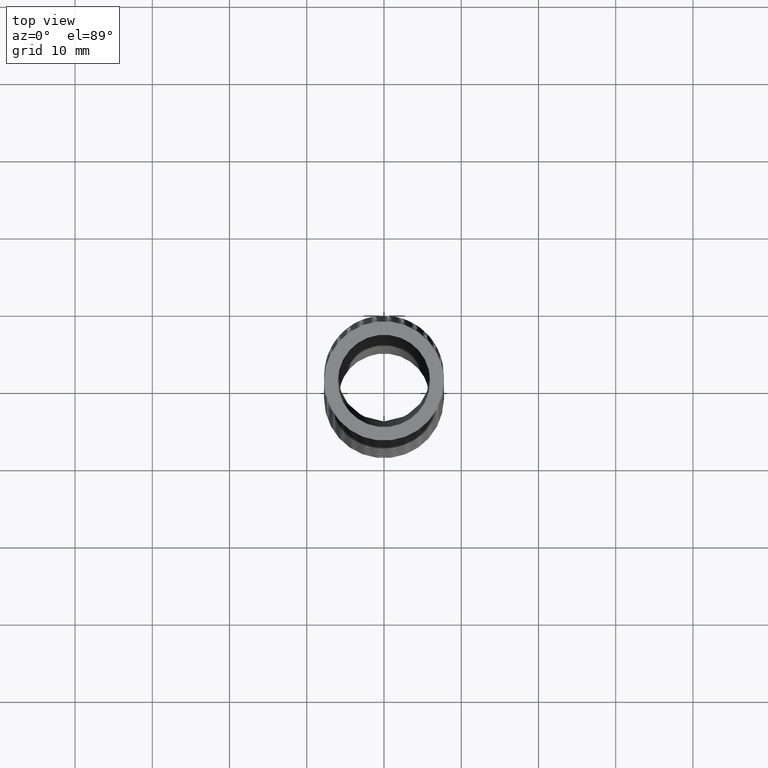
[diagram: clean part render]
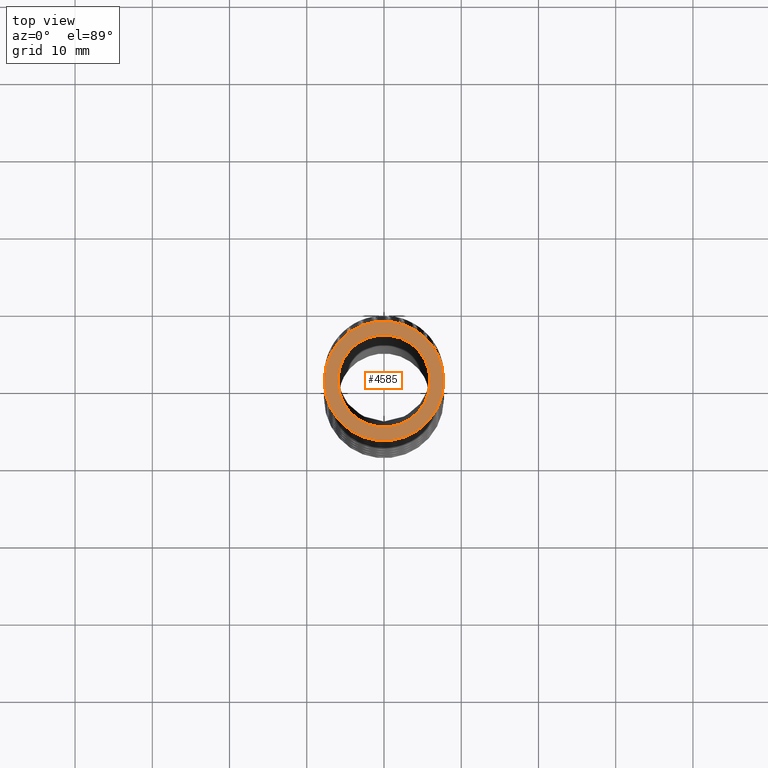
[diagram: same view with one face highlighted and labeled with its STEP entity id]
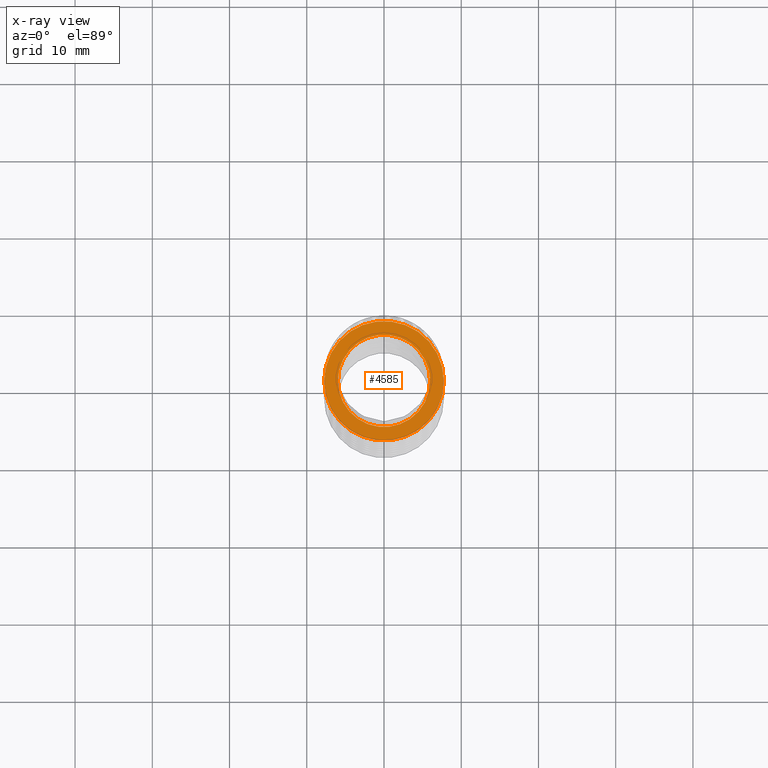
[diagram: x-ray of the same camera — body ghosted, the highlighted face saturated]
A machine part, top view. The second image highlights one B-rep face of the part: STEP entity #4585.
The next image is the same camera in x-ray: the body ghosted, the highlighted face saturated — about 0% of this face is hidden behind the body in this view.
In plain terms, the highlighted planar face has unit normal (0, 0, 1).
Its self-contained STEP definition (entity closure, byte-faithful):
#236 = CIRCLE ( 'NONE', #257, 0.2349999999999999900 ) ;
#254 = DIRECTION ( 'NONE',  ( 1.000000000000000000, 0.0000000000000000000, 0.0000000000000000000 ) ) ;
#255 = DIRECTION ( 'NONE',  ( 0.0000000000000000000, 0.0000000000000000000, 1.000000000000000000 ) ) ;
#256 = CARTESIAN_POINT ( 'NONE',  ( 0.0000000000000000000, 0.0000000000000000000, 0.0000000000000000000 ) ) ;
#257 = AXIS2_PLACEMENT_3D ( 'NONE', #256, #255, #254 ) ;
#537 = DIRECTION ( 'NONE',  ( 1.000000000000000000, 0.0000000000000000000, 0.0000000000000000000 ) ) ;
#538 = DIRECTION ( 'NONE',  ( 0.0000000000000000000, 0.0000000000000000000, 1.000000000000000000 ) ) ;
#539 = AXIS2_PLACEMENT_3D ( 'NONE', #543, #538, #537 ) ;
#540 = CIRCLE ( 'NONE', #539, 0.3050000000000000500 ) ;
#543 = CARTESIAN_POINT ( 'NONE',  ( 0.0000000000000000000, 0.0000000000000000000, 0.0000000000000000000 ) ) ;
#3442 = EDGE_CURVE ( 'NONE', #3444, #3446, #11573, .T. ) ;
#3444 = VERTEX_POINT ( 'NONE', #11568 ) ;
#3446 = VERTEX_POINT ( 'NONE', #11525 ) ;
#3564 = EDGE_CURVE ( 'NONE', #3565, #3566, #12791, .T. ) ;
#3565 = VERTEX_POINT ( 'NONE', #12826 ) ;
#3566 = VERTEX_POINT ( 'NONE', #12823 ) ;
#4457 = EDGE_CURVE ( 'NONE', #3446, #3444, #236, .T. ) ;
#4458 = ORIENTED_EDGE ( 'NONE', *, *, #4493, .T. ) ;
#4459 = ORIENTED_EDGE ( 'NONE', *, *, #3564, .T. ) ;
#4493 = EDGE_CURVE ( 'NONE', #3566, #3565, #540, .T. ) ;
#4585 = ADVANCED_FACE ( 'NONE', ( #6984, #6983 ), #7016, .T. ) ;
#4586 = EDGE_LOOP ( 'NONE', ( #4587, #4588 ) ) ;
#4587 = ORIENTED_EDGE ( 'NONE', *, *, #3442, .F. ) ;
#4588 = ORIENTED_EDGE ( 'NONE', *, *, #4457, .F. ) ;
#4589 = EDGE_LOOP ( 'NONE', ( #4458, #4459 ) ) ;
#6983 = FACE_OUTER_BOUND ( 'NONE', #4589, .T. ) ;
#6984 = FACE_BOUND ( 'NONE', #4586, .T. ) ;
#7012 = DIRECTION ( 'NONE',  ( 1.000000000000000000, 0.0000000000000000000, 0.0000000000000000000 ) ) ;
#7013 = DIRECTION ( 'NONE',  ( 0.0000000000000000000, 0.0000000000000000000, 1.000000000000000000 ) ) ;
#7014 = CARTESIAN_POINT ( 'NONE',  ( 0.0000000000000000000, 0.0000000000000000000, 0.0000000000000000000 ) ) ;
#7015 = AXIS2_PLACEMENT_3D ( 'NONE', #7014, #7013, #7012 ) ;
#7016 = PLANE ( 'NONE',  #7015 ) ;
#11525 = CARTESIAN_POINT ( 'NONE',  ( -0.2349999999999999900, 2.877919977996279800E-017, 0.0000000000000000000 ) ) ;
#11568 = CARTESIAN_POINT ( 'NONE',  ( 0.2349999999999999900, 0.0000000000000000000, 0.0000000000000000000 ) ) ;
#11569 = DIRECTION ( 'NONE',  ( 1.000000000000000000, 0.0000000000000000000, 0.0000000000000000000 ) ) ;
#11570 = DIRECTION ( 'NONE',  ( 0.0000000000000000000, 0.0000000000000000000, 1.000000000000000000 ) ) ;
#11571 = CARTESIAN_POINT ( 'NONE',  ( 0.0000000000000000000, 0.0000000000000000000, 0.0000000000000000000 ) ) ;
#11572 = AXIS2_PLACEMENT_3D ( 'NONE', #11571, #11570, #11569 ) ;
#11573 = CIRCLE ( 'NONE', #11572, 0.2349999999999999900 ) ;
#12788 = DIRECTION ( 'NONE',  ( 1.000000000000000000, 0.0000000000000000000, 0.0000000000000000000 ) ) ;
#12789 = DIRECTION ( 'NONE',  ( 0.0000000000000000000, 0.0000000000000000000, 1.000000000000000000 ) ) ;
#12790 = AXIS2_PLACEMENT_3D ( 'NONE', #12821, #12789, #12788 ) ;
#12791 = CIRCLE ( 'NONE', #12790, 0.3050000000000000500 ) ;
#12821 = CARTESIAN_POINT ( 'NONE',  ( 0.0000000000000000000, 0.0000000000000000000, 0.0000000000000000000 ) ) ;
#12823 = CARTESIAN_POINT ( 'NONE',  ( 0.3050000000000000500, 0.0000000000000000000, 0.0000000000000000000 ) ) ;
#12826 = CARTESIAN_POINT ( 'NONE',  ( -0.3050000000000000500, 3.735172737399427600E-017, 0.0000000000000000000 ) ) ;